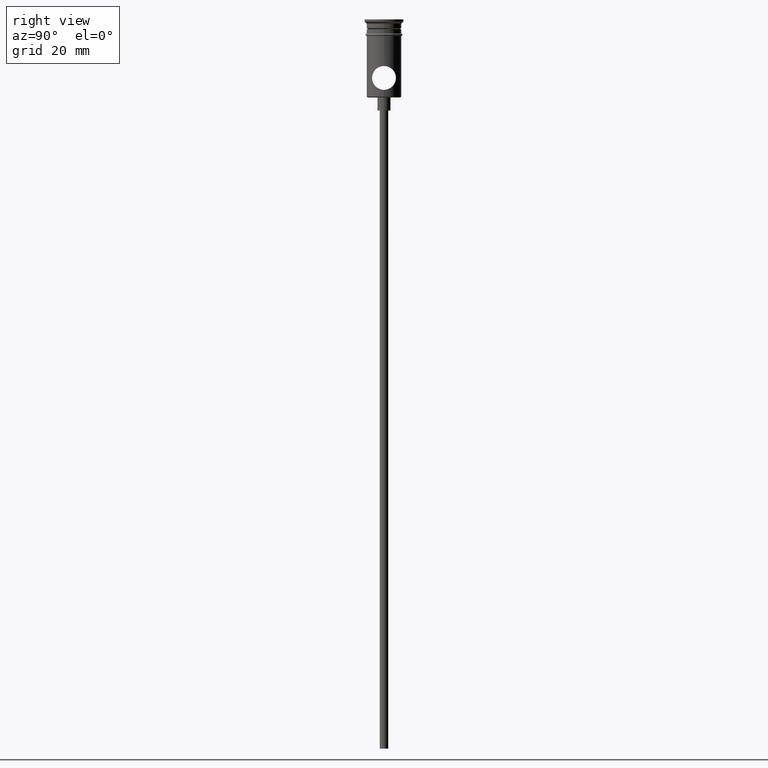
[diagram: clean part render]
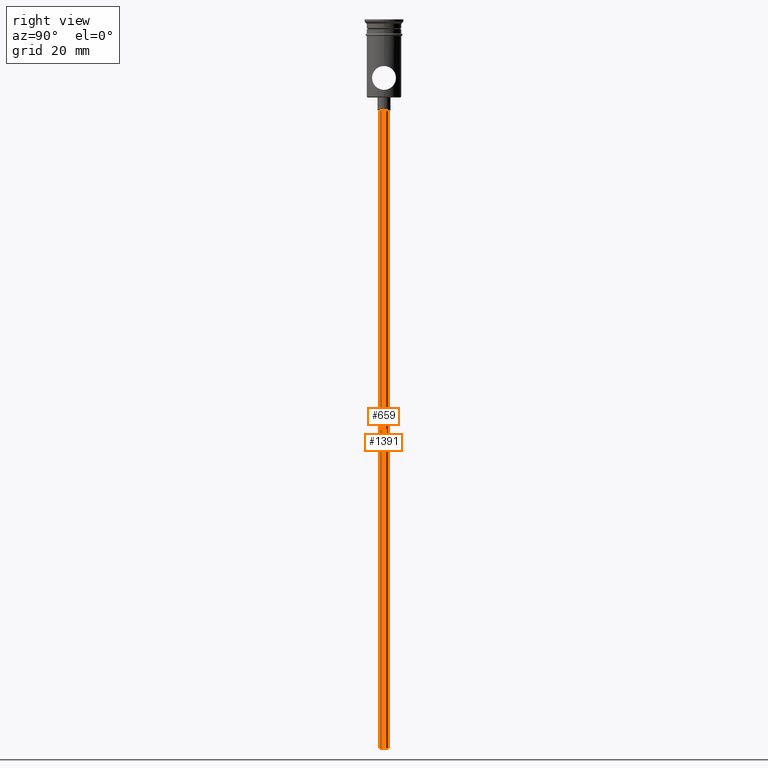
[diagram: same view with one multi-face feature highlighted, each face labeled with its STEP entity id]
A machine part, right view. The highlighted faces form ONE feature: a constant-radius fillet chain: 2 tangent blend faces with common blend radius 1 mm. The faces share edges in the B-rep.
Their STEP definitions:
[1] entity #659 (Cylinder):
#22 = EDGE_LOOP ( 'NONE', ( #1155, #584, #672, #266 ) ) ;
#40 = DIRECTION ( 'NONE',  ( -0.000000000000000000, -0.000000000000000000, 1.000000000000000000 ) ) ;
#54 = VERTEX_POINT ( 'NONE', #1141 ) ;
#144 = DIRECTION ( 'NONE',  ( -1.000000000000000000, 0.000000000000000000, 0.000000000000000000 ) ) ;
#184 = VERTEX_POINT ( 'NONE', #1305 ) ;
#195 = DIRECTION ( 'NONE',  ( 1.000000000000000000, 0.000000000000000000, 0.000000000000000000 ) ) ;
#220 = DIRECTION ( 'NONE',  ( -0.000000000000000000, -0.000000000000000000, 1.000000000000000000 ) ) ;
#256 = VERTEX_POINT ( 'NONE', #294 ) ;
#266 = ORIENTED_EDGE ( 'NONE', *, *, #603, .T. ) ;
#279 = CARTESIAN_POINT ( 'NONE',  ( -0.9999999999999997780, 1.224646799147352961E-16, -167.9999999999999716 ) ) ;
#294 = CARTESIAN_POINT ( 'NONE',  ( 0.9999999999999997780, 0.000000000000000000, -20.99999999999999645 ) ) ;
#312 = CARTESIAN_POINT ( 'NONE',  ( -0.9999999999999997780, 1.224646799147352961E-16, -20.99999999999999645 ) ) ;
#328 = CIRCLE ( 'NONE', #666, 0.9999999999999997780 ) ;
#413 = DIRECTION ( 'NONE',  ( -0.000000000000000000, -0.000000000000000000, 1.000000000000000000 ) ) ;
#463 = VECTOR ( 'NONE', #40, 1000.000000000000000 ) ;
#480 = EDGE_CURVE ( 'NONE', #184, #256, #905, .T. ) ;
#572 = DIRECTION ( 'NONE',  ( 0.000000000000000000, 0.000000000000000000, -1.000000000000000000 ) ) ;
#584 = ORIENTED_EDGE ( 'NONE', *, *, #586, .F. ) ;
#586 = EDGE_CURVE ( 'NONE', #184, #54, #910, .T. ) ;
#603 = EDGE_CURVE ( 'NONE', #256, #1156, #328, .T. ) ;
#629 = EDGE_CURVE ( 'NONE', #54, #1156, #934, .T. ) ;
#659 = ADVANCED_FACE ( 'NONE', ( #1059 ), #921, .T. ) ;
#666 = AXIS2_PLACEMENT_3D ( 'NONE', #916, #1384, #840 ) ;
#672 = ORIENTED_EDGE ( 'NONE', *, *, #480, .T. ) ;
#840 = DIRECTION ( 'NONE',  ( -1.000000000000000000, 0.000000000000000000, 0.000000000000000000 ) ) ;
#905 = LINE ( 'NONE', #1000, #463 ) ;
#910 = CIRCLE ( 'NONE', #1318, 0.9999999999999997780 ) ;
#916 = CARTESIAN_POINT ( 'NONE',  ( 0.000000000000000000, 0.000000000000000000, -20.99999999999999645 ) ) ;
#921 = CYLINDRICAL_SURFACE ( 'NONE', #1098, 0.9999999999999997780 ) ;
#934 = LINE ( 'NONE', #279, #1383 ) ;
#1000 = CARTESIAN_POINT ( 'NONE',  ( 0.9999999999999997780, 0.000000000000000000, -167.9999999999999716 ) ) ;
#1059 = FACE_OUTER_BOUND ( 'NONE', #22, .T. ) ;
#1098 = AXIS2_PLACEMENT_3D ( 'NONE', #1165, #220, #195 ) ;
#1108 = CARTESIAN_POINT ( 'NONE',  ( 0.000000000000000000, 0.000000000000000000, -167.9999999999999716 ) ) ;
#1141 = CARTESIAN_POINT ( 'NONE',  ( -0.9999999999999997780, 1.224646799147352961E-16, -167.9999999999999716 ) ) ;
#1155 = ORIENTED_EDGE ( 'NONE', *, *, #629, .F. ) ;
#1156 = VERTEX_POINT ( 'NONE', #312 ) ;
#1165 = CARTESIAN_POINT ( 'NONE',  ( 0.000000000000000000, 0.000000000000000000, -167.9999999999999716 ) ) ;
#1305 = CARTESIAN_POINT ( 'NONE',  ( 0.9999999999999997780, 0.000000000000000000, -167.9999999999999716 ) ) ;
#1318 = AXIS2_PLACEMENT_3D ( 'NONE', #1108, #572, #144 ) ;
#1383 = VECTOR ( 'NONE', #413, 1000.000000000000000 ) ;
#1384 = DIRECTION ( 'NONE',  ( 0.000000000000000000, 0.000000000000000000, -1.000000000000000000 ) ) ;
[2] entity #1391 (Cylinder):
#12 = CIRCLE ( 'NONE', #756, 0.9999999999999997780 ) ;
#40 = DIRECTION ( 'NONE',  ( -0.000000000000000000, -0.000000000000000000, 1.000000000000000000 ) ) ;
#54 = VERTEX_POINT ( 'NONE', #1141 ) ;
#75 = DIRECTION ( 'NONE',  ( 1.000000000000000000, 0.000000000000000000, 0.000000000000000000 ) ) ;
#82 = CARTESIAN_POINT ( 'NONE',  ( 0.000000000000000000, 0.000000000000000000, -167.9999999999999716 ) ) ;
#184 = VERTEX_POINT ( 'NONE', #1305 ) ;
#206 = FACE_OUTER_BOUND ( 'NONE', #633, .T. ) ;
#256 = VERTEX_POINT ( 'NONE', #294 ) ;
#279 = CARTESIAN_POINT ( 'NONE',  ( -0.9999999999999997780, 1.224646799147352961E-16, -167.9999999999999716 ) ) ;
#294 = CARTESIAN_POINT ( 'NONE',  ( 0.9999999999999997780, 0.000000000000000000, -20.99999999999999645 ) ) ;
#311 = DIRECTION ( 'NONE',  ( -1.000000000000000000, 0.000000000000000000, 0.000000000000000000 ) ) ;
#312 = CARTESIAN_POINT ( 'NONE',  ( -0.9999999999999997780, 1.224646799147352961E-16, -20.99999999999999645 ) ) ;
#389 = DIRECTION ( 'NONE',  ( 0.000000000000000000, 0.000000000000000000, -1.000000000000000000 ) ) ;
#396 = CYLINDRICAL_SURFACE ( 'NONE', #777, 0.9999999999999997780 ) ;
#413 = DIRECTION ( 'NONE',  ( -0.000000000000000000, -0.000000000000000000, 1.000000000000000000 ) ) ;
#463 = VECTOR ( 'NONE', #40, 1000.000000000000000 ) ;
#480 = EDGE_CURVE ( 'NONE', #184, #256, #905, .T. ) ;
#505 = CARTESIAN_POINT ( 'NONE',  ( 0.000000000000000000, 0.000000000000000000, -20.99999999999999645 ) ) ;
#515 = DIRECTION ( 'NONE',  ( -0.000000000000000000, -0.000000000000000000, 1.000000000000000000 ) ) ;
#533 = AXIS2_PLACEMENT_3D ( 'NONE', #1397, #635, #311 ) ;
#629 = EDGE_CURVE ( 'NONE', #54, #1156, #934, .T. ) ;
#633 = EDGE_LOOP ( 'NONE', ( #893, #1181, #1028, #834 ) ) ;
#635 = DIRECTION ( 'NONE',  ( 0.000000000000000000, 0.000000000000000000, -1.000000000000000000 ) ) ;
#643 = EDGE_CURVE ( 'NONE', #1156, #256, #12, .T. ) ;
#756 = AXIS2_PLACEMENT_3D ( 'NONE', #505, #389, #1046 ) ;
#777 = AXIS2_PLACEMENT_3D ( 'NONE', #82, #515, #75 ) ;
#834 = ORIENTED_EDGE ( 'NONE', *, *, #480, .F. ) ;
#893 = ORIENTED_EDGE ( 'NONE', *, *, #1412, .F. ) ;
#905 = LINE ( 'NONE', #1000, #463 ) ;
#934 = LINE ( 'NONE', #279, #1383 ) ;
#952 = CIRCLE ( 'NONE', #533, 0.9999999999999997780 ) ;
#1000 = CARTESIAN_POINT ( 'NONE',  ( 0.9999999999999997780, 0.000000000000000000, -167.9999999999999716 ) ) ;
#1028 = ORIENTED_EDGE ( 'NONE', *, *, #643, .T. ) ;
#1046 = DIRECTION ( 'NONE',  ( -1.000000000000000000, 0.000000000000000000, 0.000000000000000000 ) ) ;
#1141 = CARTESIAN_POINT ( 'NONE',  ( -0.9999999999999997780, 1.224646799147352961E-16, -167.9999999999999716 ) ) ;
#1156 = VERTEX_POINT ( 'NONE', #312 ) ;
#1181 = ORIENTED_EDGE ( 'NONE', *, *, #629, .T. ) ;
#1305 = CARTESIAN_POINT ( 'NONE',  ( 0.9999999999999997780, 0.000000000000000000, -167.9999999999999716 ) ) ;
#1383 = VECTOR ( 'NONE', #413, 1000.000000000000000 ) ;
#1391 = ADVANCED_FACE ( 'NONE', ( #206 ), #396, .T. ) ;
#1397 = CARTESIAN_POINT ( 'NONE',  ( 0.000000000000000000, 0.000000000000000000, -167.9999999999999716 ) ) ;
#1412 = EDGE_CURVE ( 'NONE', #54, #184, #952, .T. ) ;